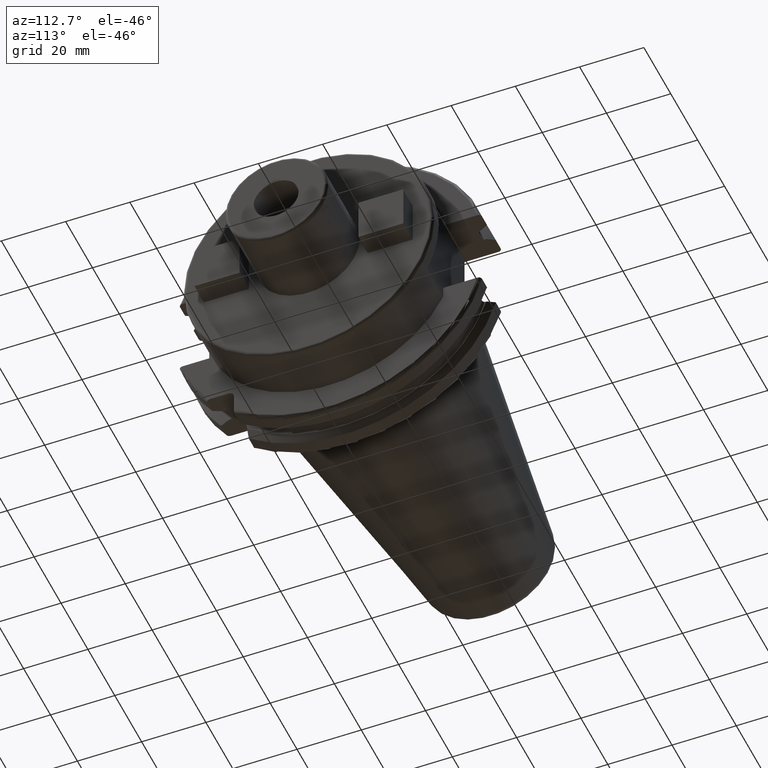
[diagram: clean part render]
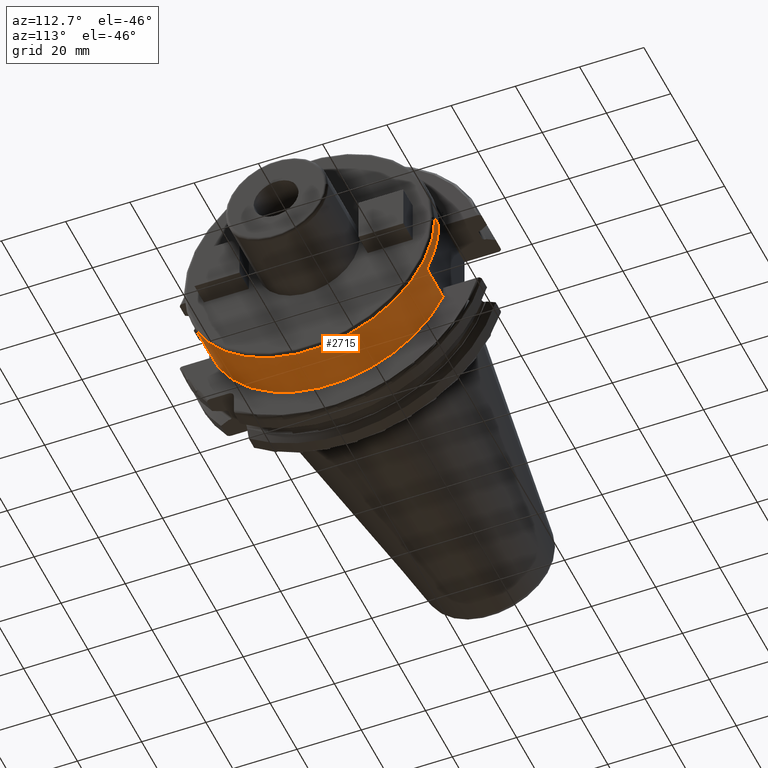
[diagram: same view with one face highlighted and labeled with its STEP entity id]
A machine part, auxiliary view. The second image highlights one B-rep face of the part: STEP entity #2715.
In plain terms, the highlighted cylindrical surface (partial cylindrical patch) has radius 39 mm, axis along (1, 0, 0).
Its self-contained STEP definition (entity closure, byte-faithful):
#154=CARTESIAN_POINT('',(1.905E1,0.E0,0.E0));
#155=DIRECTION('',(1.E0,0.E0,0.E0));
#156=DIRECTION('',(0.E0,-9.615384615385E-1,-2.746703241747E-1));
#157=AXIS2_PLACEMENT_3D('',#154,#155,#156);
#974=DIRECTION('',(1.E0,0.E0,0.E0));
#975=VECTOR('',#974,1.29E1);
#976=CARTESIAN_POINT('',(1.905E1,-3.75E1,-1.071214264281E1));
#977=LINE('',#976,#975);
#978=CARTESIAN_POINT('',(3.195E1,0.E0,0.E0));
#979=DIRECTION('',(1.E0,0.E0,0.E0));
#980=DIRECTION('',(0.E0,-1.E0,0.E0));
#981=AXIS2_PLACEMENT_3D('',#978,#979,#980);
#983=DIRECTION('',(-1.E0,0.E0,-3.514004780447E-13));
#984=VECTOR('',#983,2.05E0);
#985=CARTESIAN_POINT('',(3.4E1,-3.9E1,7.125395145713E-13));
#986=LINE('',#985,#984);
#987=CARTESIAN_POINT('',(3.4E1,0.E0,0.E0));
#988=DIRECTION('',(-1.E0,0.E0,0.E0));
#989=DIRECTION('',(0.E0,1.E0,0.E0));
#990=AXIS2_PLACEMENT_3D('',#987,#988,#989);
#992=DIRECTION('',(-1.E0,0.E0,2.523810886541E-13));
#993=VECTOR('',#992,2.85E0);
#994=CARTESIAN_POINT('',(3.4E1,3.9E1,-7.137335452005E-13));
#995=LINE('',#994,#993);
#996=CARTESIAN_POINT('',(3.115E1,0.E0,0.E0));
#997=DIRECTION('',(1.E0,0.E0,0.E0));
#998=DIRECTION('',(0.E0,9.051282051282E-1,-4.251387212210E-1));
#999=AXIS2_PLACEMENT_3D('',#996,#997,#998);
#1001=DIRECTION('',(1.E0,0.E0,0.E0));
#1002=VECTOR('',#1001,1.21E1);
#1003=CARTESIAN_POINT('',(1.905E1,3.53E1,-1.658041012762E1));
#1004=LINE('',#1003,#1002);
#1632=CARTESIAN_POINT('',(3.4E1,3.9E1,0.E0));
#1633=CARTESIAN_POINT('',(3.4E1,-3.9E1,0.E0));
#1634=VERTEX_POINT('',#1632);
#1635=VERTEX_POINT('',#1633);
#1694=CARTESIAN_POINT('',(3.115E1,3.9E1,0.E0));
#1695=VERTEX_POINT('',#1694);
#1696=CARTESIAN_POINT('',(1.905E1,3.53E1,-1.658041012762E1));
#1697=CARTESIAN_POINT('',(3.115E1,3.53E1,-1.658041012762E1));
#1698=VERTEX_POINT('',#1696);
#1699=VERTEX_POINT('',#1697);
#1709=CARTESIAN_POINT('',(3.195E1,-3.9E1,0.E0));
#1710=VERTEX_POINT('',#1709);
#1711=CARTESIAN_POINT('',(1.905E1,-3.75E1,-1.071214264281E1));
#1712=CARTESIAN_POINT('',(3.195E1,-3.75E1,-1.071214264281E1));
#1713=VERTEX_POINT('',#1711);
#1714=VERTEX_POINT('',#1712);
#2698=CARTESIAN_POINT('',(1.70525E1,0.E0,0.E0));
#2699=DIRECTION('',(1.E0,0.E0,0.E0));
#2700=DIRECTION('',(0.E0,-1.E0,0.E0));
#2701=AXIS2_PLACEMENT_3D('',#2698,#2699,#2700);
#2702=CYLINDRICAL_SURFACE('',#2701,3.9E1);
#2703=ORIENTED_EDGE('',*,*,#2004,.T.);
#2705=ORIENTED_EDGE('',*,*,#2704,.F.);
#2706=ORIENTED_EDGE('',*,*,#2679,.F.);
#2708=ORIENTED_EDGE('',*,*,#2707,.F.);
#2709=ORIENTED_EDGE('',*,*,#2675,.T.);
#2710=ORIENTED_EDGE('',*,*,#2693,.F.);
#2711=ORIENTED_EDGE('',*,*,#1875,.F.);
#2712=ORIENTED_EDGE('',*,*,#1958,.F.);
#2713=EDGE_LOOP('',(#2703,#2705,#2706,#2708,#2709,#2710,#2711,#2712));
#2714=FACE_OUTER_BOUND('',#2713,.F.);
#2715=ADVANCED_FACE('',(#2714),#2702,.T.);
#158=CIRCLE('',#157,3.9E1);
#982=CIRCLE('',#981,3.9E1);
#991=CIRCLE('',#990,3.9E1);
#1000=CIRCLE('',#999,3.9E1);
#1875=EDGE_CURVE('',#1698,#1699,#1004,.T.);
#1958=EDGE_CURVE('',#1713,#1698,#158,.T.);
#2004=EDGE_CURVE('',#1713,#1714,#977,.T.);
#2675=EDGE_CURVE('',#1634,#1695,#995,.T.);
#2679=EDGE_CURVE('',#1635,#1710,#986,.T.);
#2693=EDGE_CURVE('',#1699,#1695,#1000,.T.);
#2704=EDGE_CURVE('',#1710,#1714,#982,.T.);
#2707=EDGE_CURVE('',#1634,#1635,#991,.T.);